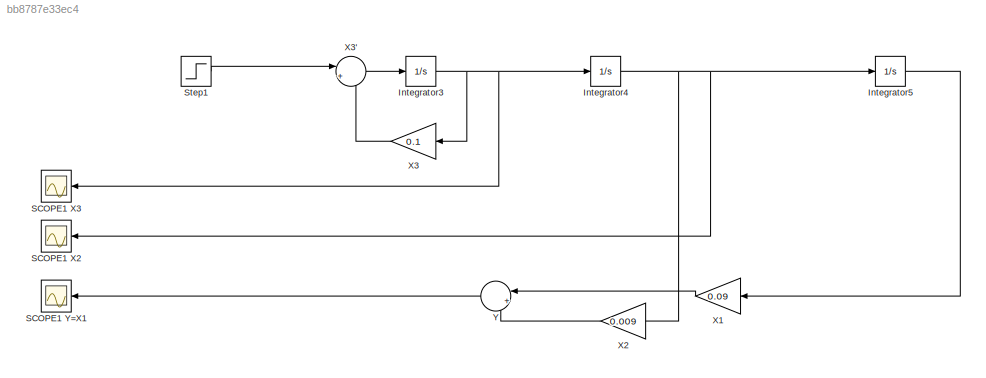
MODEL slx_bb8787e33ec4
KIND model
CONFIG AbsTol = auto
CONFIG EnableMultiTasking = off
CONFIG FixedStep = auto
CONFIG MaxStep = auto
CONFIG MinStep = auto
CONFIG RelTol = 1e-3
CONFIG SampleTimeConstraint = Unconstrained
CONFIG SolverName = VariableStepAuto
CONFIG StartTime = 0.0
CONFIG StopTime = 10.0
BLOCK [Integrator] Integrator3
  Ports = [1, 1]
BLOCK [Integrator] Integrator4
  Ports = [1, 1]
BLOCK [Integrator] Integrator5
  Ports = [1, 1]
BLOCK [Scope] SCOPE1 X2
  Floating = off
  NumInputPorts = 1
  Ports = [1]
  ScopeSpecificationString = Simulink.scopes.TimeScopeBlockCfg('CurrentConfiguration', extmgr.ConfigurationSet(extmgr.Configuration('Core','General UI',true),extmgr.Configuration('Core','Source UI',true),extmgr.Configuration('Sources','WiredSimulink',true,'DataLoggingVariableName','ScopeData2'),extmgr.Configuration('Visuals','Time Domain',true,'SerializedDisplays',{struct('MinYLimReal','-3.83212','MaxYLimReal','34.48909','YLa...<+1372ch>
BLOCK [Scope] SCOPE1 X3
  Floating = off
  NumInputPorts = 1
  Ports = [1]
  ScopeSpecificationString = Simulink.scopes.TimeScopeBlockCfg('CurrentConfiguration', extmgr.ConfigurationSet(extmgr.Configuration('Core','General UI',true),extmgr.Configuration('Core','Source UI',true),extmgr.Configuration('Sources','WiredSimulink',true,'DataLoggingVariableName','ScopeData1'),extmgr.Configuration('Visuals','Time Domain',true,'SerializedDisplays',{struct('MinYLimReal','-0.74179','MaxYLimReal','6.67609','YLab...<+1368ch>
BLOCK [Scope] SCOPE1 Y=X1
  Floating = off
  NumInputPorts = 1
  Ports = [1]
  ScopeSpecificationString = Simulink.scopes.TimeScopeBlockCfg('CurrentConfiguration', extmgr.ConfigurationSet(extmgr.Configuration('Core','General UI',true),extmgr.Configuration('Core','Source UI',true),extmgr.Configuration('Sources','WiredSimulink',true,'DataLoggingVariableName','ScopeData3'),extmgr.Configuration('Visuals','Time Domain',true,'SerializedDisplays',{struct('MinYLimReal','-1.14183','MaxYLimReal','10.27647','YLa...<+1362ch>
BLOCK [Step] Step1
  SampleTime = 0
BLOCK [Gain] X1
  Gain = 0.09
BLOCK [Gain] X2
  Gain = 0.009
BLOCK [Gain] X3
  Gain = 0.1
BLOCK [Sum] X3'
  Inputs = |+-
  NameLocation = top
  Ports = [2, 1]
BLOCK [Sum] Y
  Inputs = |++
  NameLocation = top
  Ports = [2, 1]
NET Integrator3:1 -> Integrator4:1, SCOPE1 X3:1, X3:1
NET Integrator4:1 -> Integrator5:1, SCOPE1 X2:1, X2:1
LINE Integrator5:1 -> X1:1
LINE Step1:1 -> X3':1
LINE X1:1 -> Y:1
LINE X2:1 -> Y:2
LINE X3':1 -> Integrator3:1
LINE X3:1 -> X3':2
LINE Y:1 -> SCOPE1 Y=X1:1
note: NET lines group one-source signal fan-out (src -> all destinations, sorted); 1:1 wires keep LINE
